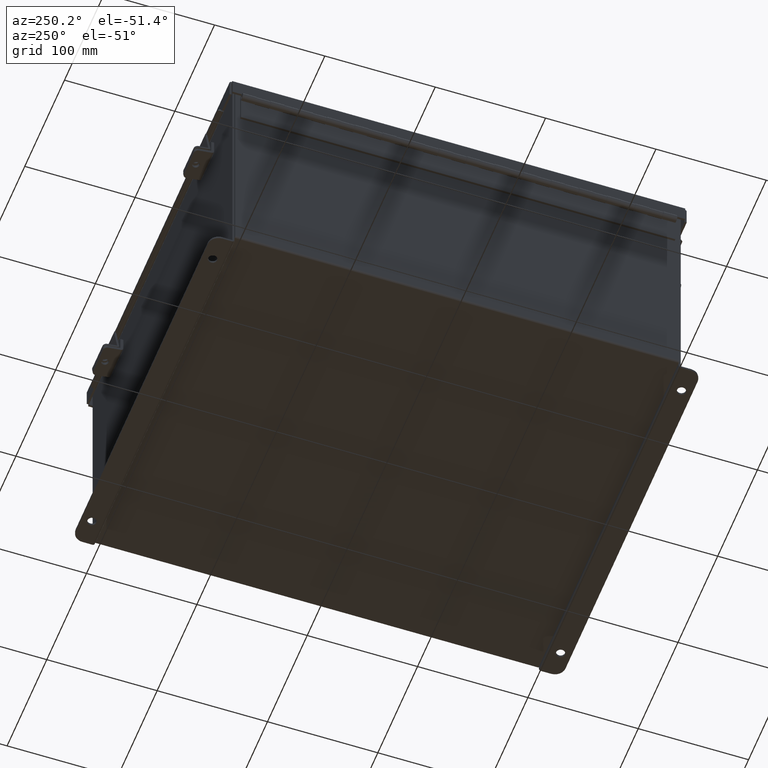
[diagram: clean part render]
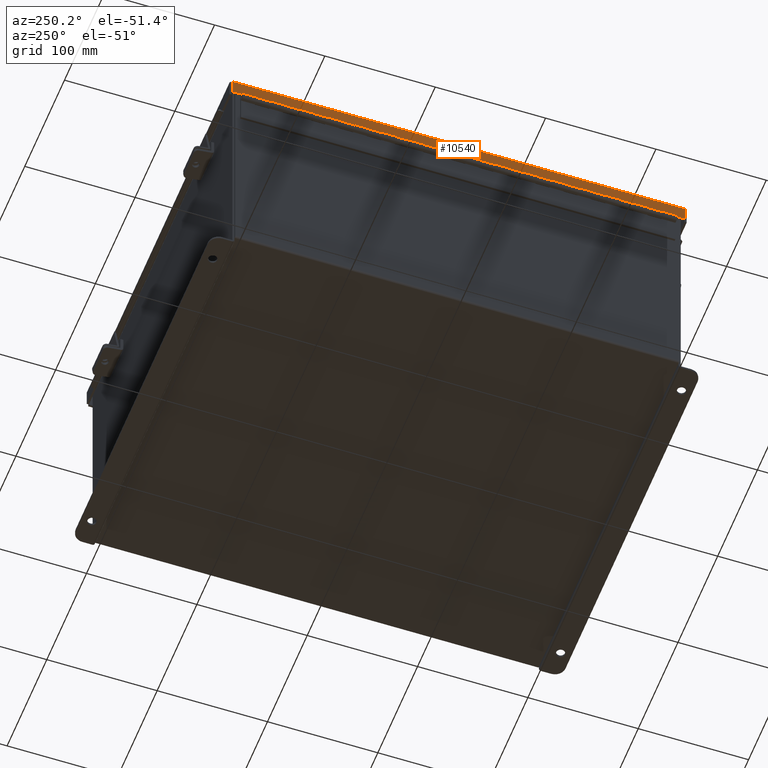
[diagram: same view with one face highlighted and labeled with its STEP entity id]
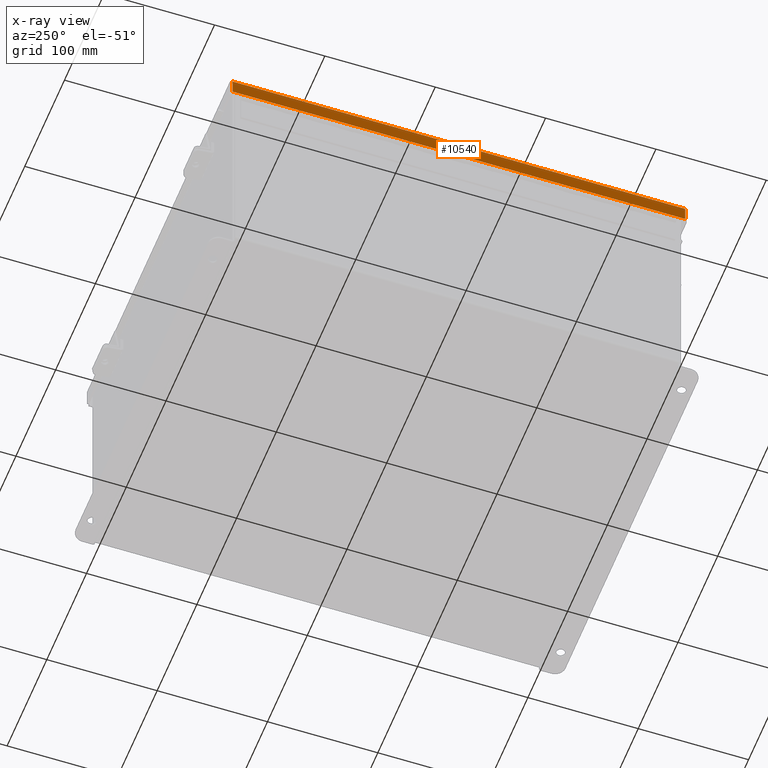
[diagram: x-ray of the same camera — body ghosted, the highlighted face saturated]
A machine part, auxiliary view. The second image highlights one B-rep face of the part: STEP entity #10540.
The next image is the same camera in x-ray: the body ghosted, the highlighted face saturated — about 0% of this face is hidden behind the body in this view.
In plain terms, the highlighted planar face has unit normal (1, -0, 0).
Its self-contained STEP definition (entity closure, byte-faithful):
#85 = EDGE_CURVE ( 'NONE', #7471, #7807, #14860, .T. ) ;
#1085 = CARTESIAN_POINT ( 'NONE',  ( 7.156250000000003600, -8.074478932188132100, 0.5503000000000010100 ) ) ;
#2984 = DIRECTION ( 'NONE',  ( 3.971430846686188400E-015, 0.0000000000000000000, 1.000000000000000000 ) ) ;
#3243 = ORIENTED_EDGE ( 'NONE', *, *, #5704, .T. ) ;
#3804 = CARTESIAN_POINT ( 'NONE',  ( 7.156250000000003600, 8.074478932188135600, 0.5502999999999999000 ) ) ;
#4281 = VECTOR ( 'NONE', #18534, 39.37007874015748100 ) ;
#4773 = LINE ( 'NONE', #16963, #4281 ) ;
#5236 = CARTESIAN_POINT ( 'NONE',  ( 7.156250000000003600, 0.0000000000000000000, 0.5503000000000085600 ) ) ;
#5704 = EDGE_CURVE ( 'NONE', #17034, #7807, #18953, .T. ) ;
#6020 = ORIENTED_EDGE ( 'NONE', *, *, #12422, .T. ) ;
#7046 = EDGE_CURVE ( 'NONE', #11053, #7471, #4773, .T. ) ;
#7192 = CARTESIAN_POINT ( 'NONE',  ( 7.156250000000001800, 0.0000000000000000000, -2.076204475184840000E-014 ) ) ;
#7254 = DIRECTION ( 'NONE',  ( 3.971430846686188400E-015, 0.0000000000000000000, 1.000000000000000000 ) ) ;
#7471 = VERTEX_POINT ( 'NONE', #17374 ) ;
#7807 = VERTEX_POINT ( 'NONE', #1085 ) ;
#8157 = CARTESIAN_POINT ( 'NONE',  ( 7.156250000000001800, -8.074478932188132100, 0.0000000000000000000 ) ) ;
#8582 = FACE_OUTER_BOUND ( 'NONE', #8601, .T. ) ;
#8601 = EDGE_LOOP ( 'NONE', ( #9300, #6020, #3243, #14669 ) ) ;
#9300 = ORIENTED_EDGE ( 'NONE', *, *, #7046, .F. ) ;
#10540 = ADVANCED_FACE ( 'NONE', ( #8582 ), #13444, .F. ) ;
#10722 = VECTOR ( 'NONE', #13528, 39.37007874015748100 ) ;
#11053 = VERTEX_POINT ( 'NONE', #13074 ) ;
#12422 = EDGE_CURVE ( 'NONE', #11053, #17034, #17765, .T. ) ;
#12852 = AXIS2_PLACEMENT_3D ( 'NONE', #7192, #16598, #7254 ) ;
#13074 = CARTESIAN_POINT ( 'NONE',  ( 7.156250000000001800, 8.074478932188135600, 0.01299999999999901400 ) ) ;
#13444 = PLANE ( 'NONE',  #12852 ) ;
#13528 = DIRECTION ( 'NONE',  ( 3.971430846686188400E-015, -0.0000000000000000000, 1.000000000000000000 ) ) ;
#14563 = VECTOR ( 'NONE', #2984, 39.37007874015748100 ) ;
#14669 = ORIENTED_EDGE ( 'NONE', *, *, #85, .F. ) ;
#14860 = LINE ( 'NONE', #8157, #10722 ) ;
#16264 = VECTOR ( 'NONE', #17619, 39.37007874015748100 ) ;
#16598 = DIRECTION ( 'NONE',  ( -1.000000000000000000, -1.157229917429806600E-033, 3.971430846686188400E-015 ) ) ;
#16963 = CARTESIAN_POINT ( 'NONE',  ( 7.156250000000001800, -8.156249999999998200, 0.01300000000000775700 ) ) ;
#17034 = VERTEX_POINT ( 'NONE', #3804 ) ;
#17374 = CARTESIAN_POINT ( 'NONE',  ( 7.156250000000001800, -8.074478932188130300, 0.01300000000000010700 ) ) ;
#17619 = DIRECTION ( 'NONE',  ( -2.258600338820354400E-033, -1.000000000000000000, 0.0000000000000000000 ) ) ;
#17765 = LINE ( 'NONE', #20074, #14563 ) ;
#18534 = DIRECTION ( 'NONE',  ( -2.258600338820354400E-033, -1.000000000000000000, -0.0000000000000000000 ) ) ;
#18953 = LINE ( 'NONE', #5236, #16264 ) ;
#20074 = CARTESIAN_POINT ( 'NONE',  ( 7.156250000000001800, 8.074478932188135600, -2.950395833157404200E-014 ) ) ;